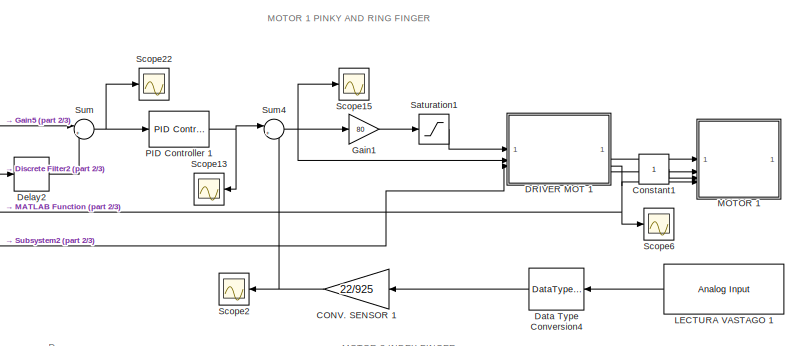
[diagram: root canvas - part 1/3, top right region]
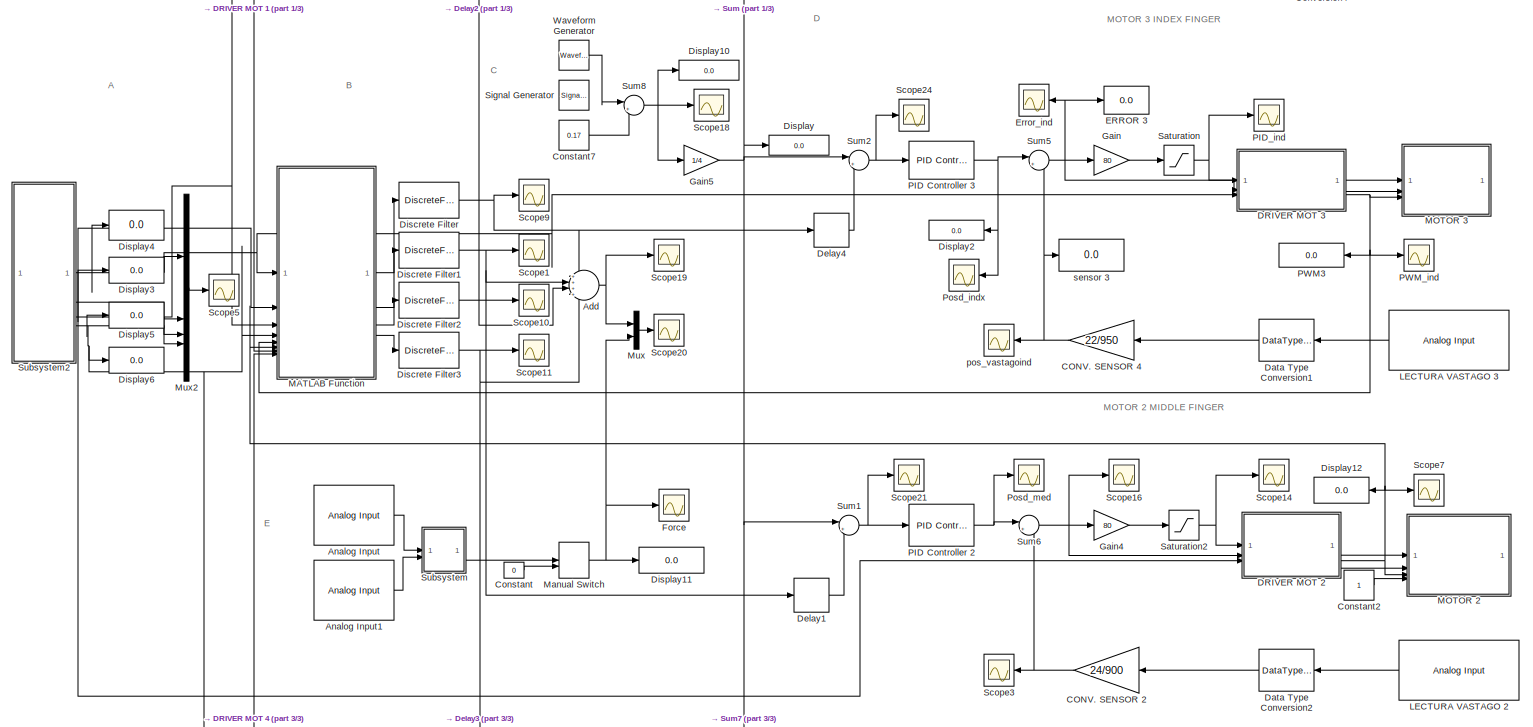
[diagram: root canvas - part 2/3, full width, middle band]
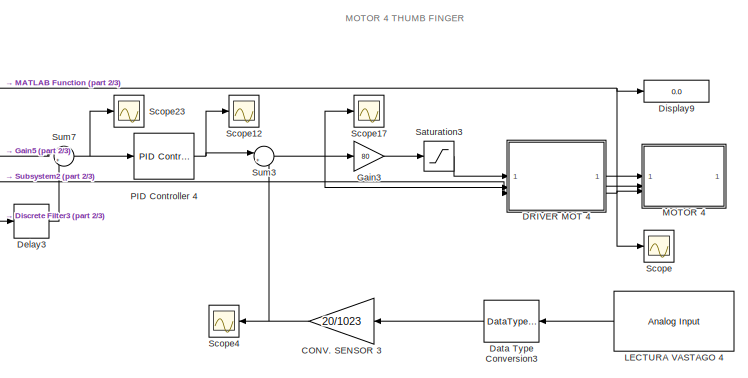
[diagram: root canvas - part 3/3, bottom right region]
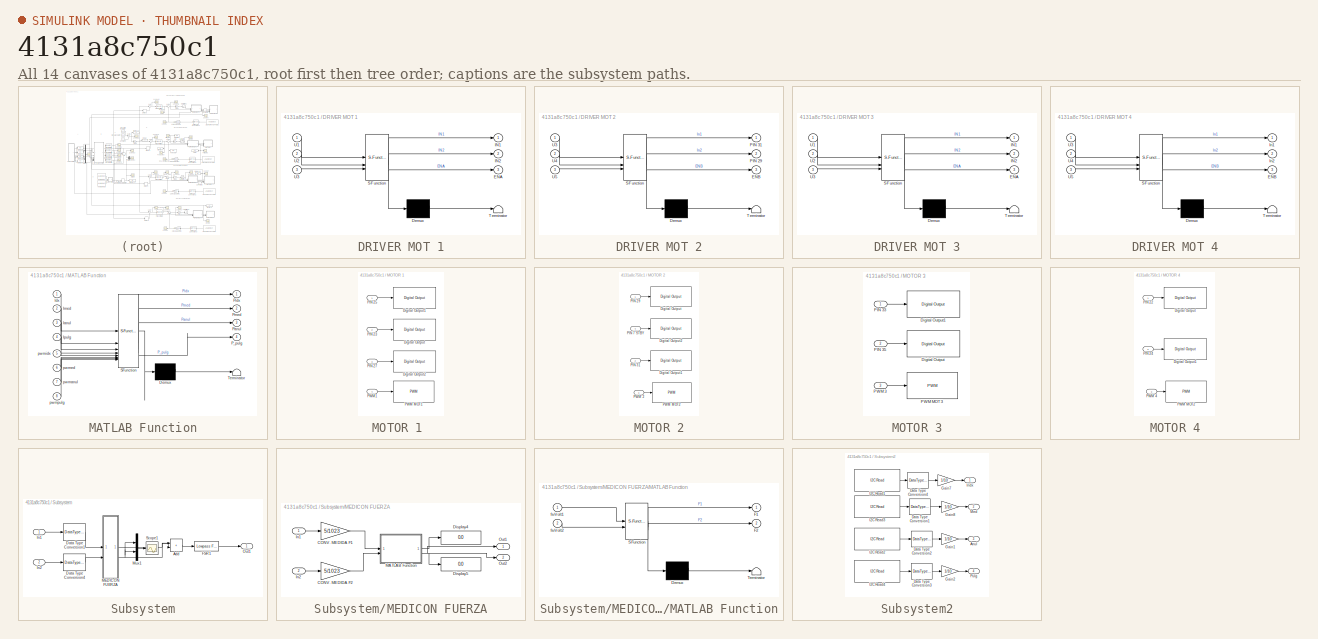
[diagram: thumbnail index - all 14 canvases of the model, root first then tree order]
MODEL slx_4131a8c750c1
KIND model
CONFIG AbsTol = auto
CONFIG EnableMultiTasking = on
CONFIG FixedStep = 0.1
CONFIG MaxStep = auto
CONFIG MinStep = auto
CONFIG RelTol = 1e-3
CONFIG SampleTimeConstraint = Unconstrained
CONFIG SolverName = FixedStepAuto
CONFIG StartTime = 0.0
CONFIG StopTime = inf
BLOCK [Sum] Add
  Inputs = ++++
BLOCK [Reference] Analog Input  REF=arduinolib/Analog Input
  SourceBlock = arduinolib/Analog Input
  SourceType = Arduino Analog Input
BLOCK [Reference] Analog Input1  REF=arduinolib/Analog Input
  SourceBlock = arduinolib/Analog Input
  SourceType = Arduino Analog Input
BLOCK [Gain] CONV. SENSOR 1
  Gain = 22/925
  OutDataTypeStr = double
BLOCK [Gain] CONV. SENSOR 2
  Gain = 24/900
  OutDataTypeStr = double
BLOCK [Gain] CONV. SENSOR 3
  Gain = 20/1023
  OutDataTypeStr = double
BLOCK [Gain] CONV. SENSOR 4
  Gain = 22/950
  OutDataTypeStr = double
BLOCK [Constant] Constant
  Value = 0
BLOCK [Constant] Constant1
BLOCK [Constant] Constant2
BLOCK [Constant] Constant7
  SampleTime = 0.01
  Value = 0.17
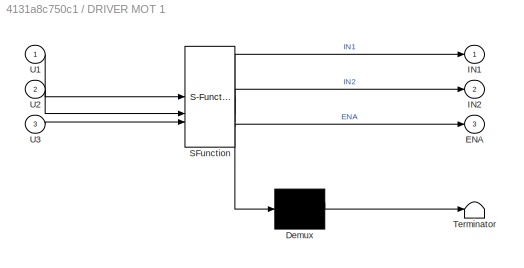
BLOCK [SubSystem] DRIVER MOT 1
  ErrorFcn = Stateflow.Translate.translate
  PermitHierarchicalResolution = ExplicitOnly
  SFBlockType = MATLAB Function
  TreatAsAtomicUnit = on
BLOCK [Demux] DRIVER MOT 1/ Demux 
  Outputs = 1
BLOCK [S-Function] DRIVER MOT 1/ SFunction 
  EnableBusSupport = on
  FunctionName = sf_sfun
  PortCounts = [3 4]
  SFcnIsStateOwnerBlock = off
  SFunctionDeploymentMode = off
  Tag = Stateflow S-Function 2
BLOCK [Terminator] DRIVER MOT 1/ Terminator 
BLOCK [Outport] DRIVER MOT 1/ENA
  Port = 3
  VectorParamsAs1DForOutWhenUnconnected = off
BLOCK [Outport] DRIVER MOT 1/IN1
  VectorParamsAs1DForOutWhenUnconnected = off
BLOCK [Outport] DRIVER MOT 1/IN2
  Port = 2
  VectorParamsAs1DForOutWhenUnconnected = off
BLOCK [Inport] DRIVER MOT 1/U1
BLOCK [Inport] DRIVER MOT 1/U2
  Port = 2
BLOCK [Inport] DRIVER MOT 1/U3
  Port = 3
BLOCK [SubSystem] DRIVER MOT 2
  ErrorFcn = Stateflow.Translate.translate
  PermitHierarchicalResolution = ExplicitOnly
  SFBlockType = MATLAB Function
  ShowPortLabels = SignalName
  TreatAsAtomicUnit = on
BLOCK [Demux] DRIVER MOT 2/ Demux 
  Outputs = 1
BLOCK [S-Function] DRIVER MOT 2/ SFunction 
  EnableBusSupport = on
  FunctionName = sf_sfun
  PortCounts = [3 4]
  SFcnIsStateOwnerBlock = off
  SFunctionDeploymentMode = off
  Tag = Stateflow S-Function 1
BLOCK [Terminator] DRIVER MOT 2/ Terminator 
BLOCK [Outport] DRIVER MOT 2/ENB
  Port = 3
  VectorParamsAs1DForOutWhenUnconnected = off
BLOCK [Outport] DRIVER MOT 2/PIN 29
  Port = 2
  VectorParamsAs1DForOutWhenUnconnected = off
BLOCK [Outport] DRIVER MOT 2/PIN 31
  VectorParamsAs1DForOutWhenUnconnected = off
BLOCK [Inport] DRIVER MOT 2/U3
BLOCK [Inport] DRIVER MOT 2/U4
  Port = 2
BLOCK [Inport] DRIVER MOT 2/U5
  Port = 3
BLOCK [SubSystem] DRIVER MOT 3
  ErrorFcn = Stateflow.Translate.translate
  PermitHierarchicalResolution = ExplicitOnly
  SFBlockType = MATLAB Function
  TreatAsAtomicUnit = on
BLOCK [Demux] DRIVER MOT 3/ Demux 
  Outputs = 1
BLOCK [S-Function] DRIVER MOT 3/ SFunction 
  EnableBusSupport = on
  FunctionName = sf_sfun
  PortCounts = [3 4]
  SFcnIsStateOwnerBlock = off
  SFunctionDeploymentMode = off
  Tag = Stateflow S-Function 4
BLOCK [Terminator] DRIVER MOT 3/ Terminator 
BLOCK [Outport] DRIVER MOT 3/ENA
  Port = 3
  VectorParamsAs1DForOutWhenUnconnected = off
BLOCK [Outport] DRIVER MOT 3/IN1
  VectorParamsAs1DForOutWhenUnconnected = off
BLOCK [Outport] DRIVER MOT 3/IN2
  Port = 2
  VectorParamsAs1DForOutWhenUnconnected = off
BLOCK [Inport] DRIVER MOT 3/U1
BLOCK [Inport] DRIVER MOT 3/U2
  Port = 2
BLOCK [Inport] DRIVER MOT 3/U3
  Port = 3
BLOCK [SubSystem] DRIVER MOT 4
  ErrorFcn = Stateflow.Translate.translate
  PermitHierarchicalResolution = ExplicitOnly
  SFBlockType = MATLAB Function
  TreatAsAtomicUnit = on
BLOCK [Demux] DRIVER MOT 4/ Demux 
  Outputs = 1
BLOCK [S-Function] DRIVER MOT 4/ SFunction 
  EnableBusSupport = on
  FunctionName = sf_sfun
  PortCounts = [3 4]
  SFcnIsStateOwnerBlock = off
  SFunctionDeploymentMode = off
  Tag = Stateflow S-Function 6
BLOCK [Terminator] DRIVER MOT 4/ Terminator 
BLOCK [Outport] DRIVER MOT 4/ENB
  Port = 3
  VectorParamsAs1DForOutWhenUnconnected = off
BLOCK [Outport] DRIVER MOT 4/In1
  VectorParamsAs1DForOutWhenUnconnected = off
BLOCK [Outport] DRIVER MOT 4/In2
  Port = 2
  VectorParamsAs1DForOutWhenUnconnected = off
BLOCK [Inport] DRIVER MOT 4/U3
BLOCK [Inport] DRIVER MOT 4/U4
  Port = 2
BLOCK [Inport] DRIVER MOT 4/U5
  Port = 3
BLOCK [DataTypeConversion] Data Type Conversion1
  OutDataTypeStr = double
  RndMeth = Floor
  SaturateOnIntegerOverflow = off
BLOCK [DataTypeConversion] Data Type Conversion2
  OutDataTypeStr = double
  RndMeth = Floor
  SaturateOnIntegerOverflow = off
BLOCK [DataTypeConversion] Data Type Conversion3
  OutDataTypeStr = double
  RndMeth = Floor
  SaturateOnIntegerOverflow = off
BLOCK [DataTypeConversion] Data Type Conversion4
  OutDataTypeStr = double
  RndMeth = Floor
  SaturateOnIntegerOverflow = off
BLOCK [Delay] Delay1
  DelayLength = 1
  InputPortMap = u0
  SampleTime = 0.01
BLOCK [Delay] Delay2
  DelayLength = 1
  InputPortMap = u0
  SampleTime = 0.01
BLOCK [Delay] Delay3
  DelayLength = 1
  InputPortMap = u0
  SampleTime = 0.01
BLOCK [Delay] Delay4
  DelayLength = 1
  InputPortMap = u0
  SampleTime = 0.01
BLOCK [DiscreteFilter] Discrete Filter
  Denominator = [1]
  InputPortMap = u0
  Numerator = (1/30)*ones(1,30)
BLOCK [DiscreteFilter] Discrete Filter1
  Denominator = [1]
  InputPortMap = u0
  Numerator = (1/30)*ones(1,30)
BLOCK [DiscreteFilter] Discrete Filter2
  Denominator = [1]
  InputPortMap = u0
  Numerator = (1/30)*ones(1,30)
BLOCK [DiscreteFilter] Discrete Filter3
  Denominator = [1]
  InputPortMap = u0
  Numerator = (1/30)*ones(1,30)
BLOCK [Display] Display
  Decimation = 1
BLOCK [Display] Display10
  Decimation = 1
BLOCK [Display] Display11
  Decimation = 1
BLOCK [Display] Display12
  Decimation = 1
BLOCK [Display] Display2
  Decimation = 1
BLOCK [Display] Display3
  Decimation = 1
BLOCK [Display] Display4
  Decimation = 1
BLOCK [Display] Display5
  Decimation = 1
BLOCK [Display] Display6
  Decimation = 1
BLOCK [Display] Display9
  Decimation = 1
BLOCK [Display] ERROR 3
  Decimation = 1
BLOCK [Scope] Error_ind
  Floating = off
  NumInputPorts = 1
  ScopeSpecificationString = Simulink.scopes.TimeScopeBlockCfg('CurrentConfiguration', extmgr.ConfigurationSet(extmgr.Configuration('Core','General UI',true),extmgr.Configuration('Core','Source UI',true),extmgr.Configuration('Sources','WiredSimulink',true,'DataLoggingVariableName','Error_ind','DataLogging',true,'DataLoggingSaveFormat','StructureWithTime'),extmgr.Configuration('Visuals','Time Domain',true,'SerializedDisplays',...<+1537ch>
BLOCK [Scope] Force
  Floating = off
  NumInputPorts = 1
  ScopeSpecificationString = Simulink.scopes.TimeScopeBlockCfg('CurrentConfiguration', extmgr.ConfigurationSet(extmgr.Configuration('Core','General UI',true),extmgr.Configuration('Core','Source UI',true),extmgr.Configuration('Sources','WiredSimulink',true,'DataLoggingVariableName','FSR_force','DataLogging',true,'DataLoggingSaveFormat','StructureWithTime'),extmgr.Configuration('Visuals','Time Domain',true,'SerializedDisplays',...<+1515ch>
BLOCK [Gain] Gain
  Gain = 80
BLOCK [Gain] Gain1
  Gain = 80
BLOCK [Gain] Gain3
  Gain = 80
BLOCK [Gain] Gain4
  Gain = 80
BLOCK [Gain] Gain5
  Gain = 1/4
BLOCK [Reference] LECTURA VASTAGO 1  REF=arduinolib/Analog Input
  SourceBlock = arduinolib/Analog Input
  SourceType = Arduino Analog Input
BLOCK [Reference] LECTURA VASTAGO 2  REF=arduinolib/Analog Input
  NameLocation = top
  SourceBlock = arduinolib/Analog Input
  SourceType = Arduino Analog Input
BLOCK [Reference] LECTURA VASTAGO 3  REF=arduinolib/Analog Input
  SourceBlock = arduinolib/Analog Input
  SourceType = Arduino Analog Input
BLOCK [Reference] LECTURA VASTAGO 4  REF=arduinolib/Analog Input
  NameLocation = top
  SourceBlock = arduinolib/Analog Input
  SourceType = Arduino Analog Input
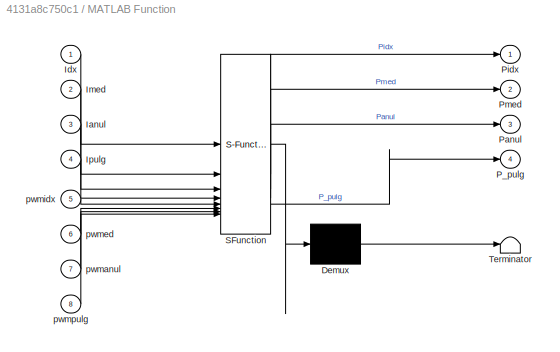
BLOCK [SubSystem] MATLAB Function
  ErrorFcn = Stateflow.Translate.translate
  PermitHierarchicalResolution = ExplicitOnly
  SFBlockType = MATLAB Function
  TreatAsAtomicUnit = on
BLOCK [Demux] MATLAB Function/ Demux 
  Outputs = 1
BLOCK [S-Function] MATLAB Function/ SFunction 
  EnableBusSupport = on
  FunctionName = sf_sfun
  PortCounts = [8 5]
  SFcnIsStateOwnerBlock = off
  SFunctionDeploymentMode = off
  Tag = Stateflow S-Function 3
BLOCK [Terminator] MATLAB Function/ Terminator 
BLOCK [Inport] MATLAB Function/Ianul
  Port = 3
BLOCK [Inport] MATLAB Function/Idx
BLOCK [Inport] MATLAB Function/Imed
  Port = 2
BLOCK [Inport] MATLAB Function/Ipulg
  Port = 4
BLOCK [Outport] MATLAB Function/P_pulg
  Port = 4
BLOCK [Outport] MATLAB Function/Panul
  Port = 3
BLOCK [Outport] MATLAB Function/Pidx
BLOCK [Outport] MATLAB Function/Pmed
  Port = 2
BLOCK [Inport] MATLAB Function/pwmanul
  Port = 7
BLOCK [Inport] MATLAB Function/pwmed
  Port = 6
BLOCK [Inport] MATLAB Function/pwmidx
  Port = 5
BLOCK [Inport] MATLAB Function/pwmpulg
  Port = 8
BLOCK [SubSystem] MOTOR 1 
BLOCK [Reference] MOTOR 1 /Digital Output  REF=arduinolib/Digital Output
  SourceBlock = arduinolib/Digital Output
  SourceType = Arduino Digital Output
BLOCK [Reference] MOTOR 1 /Digital Output1  REF=arduinolib/Digital Output
  SourceBlock = arduinolib/Digital Output
  SourceType = Arduino Digital Output
BLOCK [Reference] MOTOR 1 /Digital Output2  REF=arduinolib/Digital Output
  SourceBlock = arduinolib/Digital Output
  SourceType = Arduino Digital Output
BLOCK [Inport] MOTOR 1 /PIN 23
  Port = 2
BLOCK [Inport] MOTOR 1 /PIN 25
BLOCK [Inport] MOTOR 1 /PIN 27
  Port = 3
BLOCK [Reference] MOTOR 1 /PWM MOT1  REF=arduinolib/PWM
  SourceBlock = arduinolib/PWM
  SourceType = Arduino PWM
BLOCK [Inport] MOTOR 1 /PWM1
  Port = 4
BLOCK [SubSystem] MOTOR 2
BLOCK [Reference] MOTOR 2/Digital Output  REF=arduinolib/Digital Output
  SourceBlock = arduinolib/Digital Output
  SourceType = Arduino Digital Output
BLOCK [Reference] MOTOR 2/Digital Output1  REF=arduinolib/Digital Output
  SourceBlock = arduinolib/Digital Output
  SourceType = Arduino Digital Output
BLOCK [Reference] MOTOR 2/Digital Output2  REF=arduinolib/Digital Output
  SourceBlock = arduinolib/Digital Output
  SourceType = Arduino Digital Output
BLOCK [Inport] MOTOR 2/PIN 29
BLOCK [Inport] MOTOR 2/PIN 31
  Port = 2
BLOCK [Inport] MOTOR 2/PIN 7 STBY
  Port = 4
BLOCK [Inport] MOTOR 2/PWM 2
  Port = 3
BLOCK [Reference] MOTOR 2/PWM MOT2  REF=arduinolib/PWM
  SourceBlock = arduinolib/PWM
  SourceType = Arduino PWM
BLOCK [SubSystem] MOTOR 3
BLOCK [Reference] MOTOR 3/Digital Output  REF=arduinolib/Digital Output
  SourceBlock = arduinolib/Digital Output
  SourceType = Arduino Digital Output
BLOCK [Reference] MOTOR 3/Digital Output1  REF=arduinolib/Digital Output
  SourceBlock = arduinolib/Digital Output
  SourceType = Arduino Digital Output
BLOCK [Inport] MOTOR 3/PIN 33
BLOCK [Inport] MOTOR 3/PIN 35
  Port = 2
BLOCK [Inport] MOTOR 3/PWM 3
  Port = 3
BLOCK [Reference] MOTOR 3/PWM MOT 3  REF=arduinolib/PWM
  SourceBlock = arduinolib/PWM
  SourceType = Arduino PWM
BLOCK [SubSystem] MOTOR 4
BLOCK [Reference] MOTOR 4/Digital Output  REF=arduinolib/Digital Output
  SourceBlock = arduinolib/Digital Output
  SourceType = Arduino Digital Output
BLOCK [Reference] MOTOR 4/Digital Output1  REF=arduinolib/Digital Output
  SourceBlock = arduinolib/Digital Output
  SourceType = Arduino Digital Output
BLOCK [Inport] MOTOR 4/PIN 22
BLOCK [Inport] MOTOR 4/PIN 24
  Port = 2
BLOCK [Inport] MOTOR 4/PWM 4
  Port = 3
BLOCK [Reference] MOTOR 4/PWM MOT2  REF=arduinolib/PWM
  SourceBlock = arduinolib/PWM
  SourceType = Arduino PWM
BLOCK [ManualSwitch] Manual Switch
BLOCK [Mux] Mux
  DisplayOption = bar
  Inputs = 2
BLOCK [Mux] Mux2
  DisplayOption = bar
BLOCK [Reference] PID Controller 1  REF=slpidlib/PID Controller
  SourceBlock = slpidlib/PID Controller
  SourceType = PID 1dof
BLOCK [Reference] PID Controller 2  REF=slpidlib/PID Controller
  SourceBlock = slpidlib/PID Controller
  SourceType = PID 1dof
BLOCK [Reference] PID Controller 3  REF=slpidlib/PID Controller
  SourceBlock = slpidlib/PID Controller
  SourceType = PID 1dof
BLOCK [Reference] PID Controller 4  REF=slpidlib/PID Controller
  SourceBlock = slpidlib/PID Controller
  SourceType = PID 1dof
BLOCK [Scope] PID_ind
  Floating = off
  NumInputPorts = 1
  ScopeSpecificationString = Simulink.scopes.TimeScopeBlockCfg('CurrentConfiguration', extmgr.ConfigurationSet(extmgr.Configuration('Core','General UI',true),extmgr.Configuration('Core','Source UI',true),extmgr.Configuration('Sources','WiredSimulink',true,'DataLoggingSaveFormat','StructureWithTime','DataLoggingVariableName','PID_ind','DataLogging',true),extmgr.Configuration('Visuals','Time Domain',true,'SerializedDisplays',{s...<+1514ch>
BLOCK [Display] PWM3
  Decimation = 1
BLOCK [Scope] PWM_ind
  Floating = off
  NumInputPorts = 1
  ScopeSpecificationString = Simulink.scopes.TimeScopeBlockCfg('CurrentConfiguration', extmgr.ConfigurationSet(extmgr.Configuration('Core','General UI',true),extmgr.Configuration('Core','Source UI',true),extmgr.Configuration('Sources','WiredSimulink',true,'DataLoggingSaveFormat','StructureWithTime','DataLoggingVariableName','PWM_ind','DataLogging',true),extmgr.Configuration('Visuals','Time Domain',true,'SerializedDisplays',{s...<+1518ch>
BLOCK [Scope] Posd_indx
  Floating = off
  NumInputPorts = 1
  ScopeSpecificationString = Simulink.scopes.TimeScopeBlockCfg('CurrentConfiguration', extmgr.ConfigurationSet(extmgr.Configuration('Core','General UI',true),extmgr.Configuration('Core','Source UI',true),extmgr.Configuration('Sources','WiredSimulink',true,'DataLoggingVariableName','posd_ind','DataLogging',true,'DataLoggingSaveFormat','StructureWithTime'),extmgr.Configuration('Visuals','Time Domain',true,'SerializedDisplays',{...<+1492ch>
BLOCK [Scope] Posd_med
  Floating = off
  NumInputPorts = 1
  ScopeSpecificationString = Simulink.scopes.TimeScopeBlockCfg('CurrentConfiguration', extmgr.ConfigurationSet(extmgr.Configuration('Core','General UI',true),extmgr.Configuration('Core','Source UI',true),extmgr.Configuration('Sources','WiredSimulink',true,'DataLoggingVariableName','Posd_med','DataLogging',true,'DataLoggingSaveFormat','StructureWithTime'),extmgr.Configuration('Visuals','Time Domain',true,'SerializedDisplays',{...<+1482ch>
BLOCK [Saturate] Saturation
  LowerLimit = -255
  UpperLimit = 255
BLOCK [Saturate] Saturation1
  LowerLimit = -255
  UpperLimit = 255
BLOCK [Saturate] Saturation2
  LowerLimit = -255
  UpperLimit = 255
BLOCK [Saturate] Saturation3
  LowerLimit = -255
  UpperLimit = 255
BLOCK [Scope] Scope
  Floating = off
  NumInputPorts = 1
  ScopeSpecificationString = Simulink.scopes.TimeScopeBlockCfg('CurrentConfiguration', extmgr.ConfigurationSet(extmgr.Configuration('Core','General UI',true),extmgr.Configuration('Core','Source UI',true),extmgr.Configuration('Sources','WiredSimulink',true,'DataLoggingVariableName','pmw_pul','DataLogging',true,'DataLoggingSaveFormat','StructureWithTime'),extmgr.Configuration('Visuals','Time Domain',true,'SerializedDisplays',{s...<+1522ch>
BLOCK [Scope] Scope1
  Floating = off
  NumInputPorts = 1
  ScopeSpecificationString = Simulink.scopes.TimeScopeBlockCfg('CurrentConfiguration', extmgr.ConfigurationSet(extmgr.Configuration('Core','General UI',true),extmgr.Configuration('Core','Source UI',true),extmgr.Configuration('Sources','WiredSimulink',true,'DataLoggingVariableName','P_med','DataLogging',true,'DataLoggingSaveFormat','StructureWithTime'),extmgr.Configuration('Visuals','Time Domain',true,'SerializedDisplays',{str...<+1521ch>
BLOCK [Scope] Scope10
  Floating = off
  NumInputPorts = 1
  ScopeSpecificationString = Simulink.scopes.TimeScopeBlockCfg('CurrentConfiguration', extmgr.ConfigurationSet(extmgr.Configuration('Core','General UI',true),extmgr.Configuration('Core','Source UI',true),extmgr.Configuration('Sources','WiredSimulink',true,'DataLoggingVariableName','P_anul','DataLogging',true,'DataLoggingSaveFormat','StructureWithTime'),extmgr.Configuration('Visuals','Time Domain',true,'SerializedDisplays',{st...<+1524ch>
BLOCK [Scope] Scope11
  Floating = off
  NumInputPorts = 1
  ScopeSpecificationString = Simulink.scopes.TimeScopeBlockCfg('CurrentConfiguration', extmgr.ConfigurationSet(extmgr.Configuration('Core','General UI',true),extmgr.Configuration('Core','Source UI',true),extmgr.Configuration('Sources','WiredSimulink',true,'DataLoggingVariableName','P_pulg','DataLogging',true,'DataLoggingSaveFormat','StructureWithTime'),extmgr.Configuration('Visuals','Time Domain',true,'SerializedDisplays',{st...<+1521ch>
BLOCK [Scope] Scope12
  Floating = off
  NumInputPorts = 1
  ScopeSpecificationString = Simulink.scopes.TimeScopeBlockCfg('CurrentConfiguration', extmgr.ConfigurationSet(extmgr.Configuration('Core','General UI',true),extmgr.Configuration('Core','Source UI',true),extmgr.Configuration('Sources','WiredSimulink',true,'DataLoggingVariableName','Posd_pulg','DataLogging',true,'DataLoggingSaveFormat','StructureWithTime'),extmgr.Configuration('Visuals','Time Domain',true,'SerializedDisplays',...<+1485ch>
BLOCK [Scope] Scope13
  Floating = off
  NumInputPorts = 1
  ScopeSpecificationString = Simulink.scopes.TimeScopeBlockCfg('CurrentConfiguration', extmgr.ConfigurationSet(extmgr.Configuration('Core','General UI',true),extmgr.Configuration('Core','Source UI',true),extmgr.Configuration('Sources','WiredSimulink',true,'DataLoggingVariableName','Posd_anul','DataLogging',true,'DataLoggingSaveFormat','StructureWithTime'),extmgr.Configuration('Visuals','Time Domain',true,'SerializedDisplays',...<+1502ch>
BLOCK [Scope] Scope14
  Floating = off
  NumInputPorts = 1
  ScopeSpecificationString = Simulink.scopes.TimeScopeBlockCfg('CurrentConfiguration', extmgr.ConfigurationSet(extmgr.Configuration('Core','General UI',true),extmgr.Configuration('Core','Source UI',true),extmgr.Configuration('Sources','WiredSimulink',true,'DataLoggingVariableName','ScopeData1'),extmgr.Configuration('Visuals','Time Domain',true,'SerializedDisplays',{struct('MinYLimReal','-129.86668','MaxYLimReal','86.13331','Y...<+1438ch>
BLOCK [Scope] Scope15
  Floating = off
  NumInputPorts = 1
  ScopeSpecificationString = Simulink.scopes.TimeScopeBlockCfg('CurrentConfiguration', extmgr.ConfigurationSet(extmgr.Configuration('Core','General UI',true),extmgr.Configuration('Core','Source UI',true),extmgr.Configuration('Sources','WiredSimulink',true,'DataLoggingVariableName','ScopeData2'),extmgr.Configuration('Visuals','Time Domain',true,'SerializedDisplays',{struct('MinYLimReal','-2.04351','MaxYLimReal','0.63487','YLab...<+1388ch>
BLOCK [Scope] Scope16
  Floating = off
  NumInputPorts = 1
  ScopeSpecificationString = Simulink.scopes.TimeScopeBlockCfg('CurrentConfiguration', extmgr.ConfigurationSet(extmgr.Configuration('Core','General UI',true),extmgr.Configuration('Core','Source UI',true),extmgr.Configuration('Sources','WiredSimulink',true,'DataLoggingVariableName','ScopeData3'),extmgr.Configuration('Visuals','Time Domain',true,'SerializedDisplays',{struct('MinYLimReal','-1.73667','MaxYLimReal','1.03','YLabelR...<+1415ch>
BLOCK [Scope] Scope17
  Floating = off
  NumInputPorts = 1
  ScopeSpecificationString = Simulink.scopes.TimeScopeBlockCfg('CurrentConfiguration', extmgr.ConfigurationSet(extmgr.Configuration('Core','General UI',true),extmgr.Configuration('Core','Source UI',true),extmgr.Configuration('Sources','WiredSimulink',true,'DataLoggingVariableName','ScopeData4'),extmgr.Configuration('Visuals','Time Domain',true,'SerializedDisplays',{struct('MinYLimReal','-1.5501','MaxYLimReal','1.16984','YLabe...<+1436ch>
BLOCK [Scope] Scope18
  Floating = off
  NumInputPorts = 1
  ScopeSpecificationString = Simulink.scopes.TimeScopeBlockCfg('CurrentConfiguration', extmgr.ConfigurationSet(extmgr.Configuration('Core','General UI',true),extmgr.Configuration('Core','Source UI',true),extmgr.Configuration('Sources','WiredSimulink',true,'DataLoggingVariableName','Ref_track','DataLogging',true,'DataLoggingSaveFormat','StructureWithTime'),extmgr.Configuration('Visuals','Time Domain',true,'SerializedDisplays',...<+1502ch>
BLOCK [Scope] Scope19
  Floating = off
  NumInputPorts = 1
  ScopeSpecificationString = Simulink.scopes.TimeScopeBlockCfg('CurrentConfiguration', extmgr.ConfigurationSet(extmgr.Configuration('Core','General UI',true),extmgr.Configuration('Core','Source UI',true),extmgr.Configuration('Sources','WiredSimulink',true,'DataLoggingVariableName','P_tot','DataLogging',true,'DataLoggingSaveFormat','StructureWithTime'),extmgr.Configuration('Visuals','Time Domain',true,'SerializedDisplays',{str...<+1504ch>
BLOCK [Scope] Scope2
  Floating = off
  NumInputPorts = 1
  ScopeSpecificationString = Simulink.scopes.TimeScopeBlockCfg('CurrentConfiguration', extmgr.ConfigurationSet(extmgr.Configuration('Core','General UI',true),extmgr.Configuration('Core','Source UI',true),extmgr.Configuration('Sources','WiredSimulink',true,'DataLoggingVariableName','pos_vastagoanul','DataLogging',true,'DataLoggingSaveFormat','StructureWithTime'),extmgr.Configuration('Visuals','Time Domain',true,'SerializedDisp...<+1557ch>
BLOCK [Scope] Scope20
  Floating = off
  NumInputPorts = 1
  ScopeSpecificationString = Simulink.scopes.TimeScopeBlockCfg('CurrentConfiguration', extmgr.ConfigurationSet(extmgr.Configuration('Core','General UI',true),extmgr.Configuration('Core','Source UI',true),extmgr.Configuration('Sources','WiredSimulink',true,'DataLoggingVariableName','Force_pot','DataLogging',true,'DataLoggingSaveFormat','StructureWithTime'),extmgr.Configuration('Visuals','Time Domain',true,'SerializedDisplays',...<+1538ch>
BLOCK [Scope] Scope21
  Floating = off
  NumInputPorts = 1
  ScopeSpecificationString = Simulink.scopes.TimeScopeBlockCfg('CurrentConfiguration', extmgr.ConfigurationSet(extmgr.Configuration('Core','General UI',true),extmgr.Configuration('Core','Source UI',true),extmgr.Configuration('Sources','WiredSimulink',true,'DataLoggingVariableName','ScopeData1'),extmgr.Configuration('Visuals','Time Domain',true,'SerializedDisplays',{struct('MinYLimReal','-0.09745','MaxYLimReal','0.06916','YLab...<+1418ch>
BLOCK [Scope] Scope22
  Floating = off
  NumInputPorts = 1
  ScopeSpecificationString = Simulink.scopes.TimeScopeBlockCfg('CurrentConfiguration', extmgr.ConfigurationSet(extmgr.Configuration('Core','General UI',true),extmgr.Configuration('Core','Source UI',true),extmgr.Configuration('Sources','WiredSimulink',true,'DataLoggingVariableName','ScopeData2'),extmgr.Configuration('Visuals','Time Domain',true,'SerializedDisplays',{struct('MinYLimReal','-0.12897','MaxYLimReal','0.056','YLabel...<+1432ch>
BLOCK [Scope] Scope23
  Floating = off
  NumInputPorts = 1
  ScopeSpecificationString = Simulink.scopes.TimeScopeBlockCfg('CurrentConfiguration', extmgr.ConfigurationSet(extmgr.Configuration('Core','General UI',true),extmgr.Configuration('Core','Source UI',true),extmgr.Configuration('Sources','WiredSimulink',true,'DataLoggingVariableName','ScopeData3'),extmgr.Configuration('Visuals','Time Domain',true,'SerializedDisplays',{struct('MinYLimReal','-0.1086','MaxYLimReal','0.05373','YLabe...<+1433ch>
BLOCK [Scope] Scope24
  Floating = off
  NumInputPorts = 1
  ScopeSpecificationString = Simulink.scopes.TimeScopeBlockCfg('CurrentConfiguration', extmgr.ConfigurationSet(extmgr.Configuration('Core','General UI',true),extmgr.Configuration('Core','Source UI',true),extmgr.Configuration('Sources','WiredSimulink',true,'DataLoggingVariableName','Power_Error','DataLogging',true,'DataLoggingSaveFormat','StructureWithTime'),extmgr.Configuration('Visuals','Time Domain',true,'SerializedDisplays...<+1535ch>
BLOCK [Scope] Scope3
  Floating = off
  NumInputPorts = 1
  ScopeSpecificationString = Simulink.scopes.TimeScopeBlockCfg('CurrentConfiguration', extmgr.ConfigurationSet(extmgr.Configuration('Core','General UI',true),extmgr.Configuration('Core','Source UI',true),extmgr.Configuration('Sources','WiredSimulink',true,'DataLoggingVariableName','pos_vastagomed','DataLogging',true,'DataLoggingSaveFormat','StructureWithTime'),extmgr.Configuration('Visuals','Time Domain',true,'SerializedDispl...<+1525ch>
BLOCK [Scope] Scope4
  Floating = off
  NumInputPorts = 1
  ScopeSpecificationString = Simulink.scopes.TimeScopeBlockCfg('CurrentConfiguration', extmgr.ConfigurationSet(extmgr.Configuration('Core','General UI',true),extmgr.Configuration('Core','Source UI',true),extmgr.Configuration('Sources','WiredSimulink',true,'DataLoggingVariableName','pos_vastagopul','DataLogging',true,'DataLoggingSaveFormat','StructureWithTime'),extmgr.Configuration('Visuals','Time Domain',true,'SerializedDispl...<+1517ch>
BLOCK [Scope] Scope5
  Floating = off
  NumInputPorts = 1
  ScopeSpecificationString = Simulink.scopes.TimeScopeBlockCfg('CurrentConfiguration', extmgr.ConfigurationSet(extmgr.Configuration('Core','General UI',true),extmgr.Configuration('Core','Source UI',true),extmgr.Configuration('Sources','WiredSimulink',true,'DataLoggingVariableName','current','DataLogging',true,'DataLoggingSaveFormat','StructureWithTime'),extmgr.Configuration('Visuals','Time Domain',true,'SerializedDisplays',{s...<+1743ch>
BLOCK [Scope] Scope6
  Floating = off
  NumInputPorts = 1
  ScopeSpecificationString = Simulink.scopes.TimeScopeBlockCfg('CurrentConfiguration', extmgr.ConfigurationSet(extmgr.Configuration('Core','General UI',true),extmgr.Configuration('Core','Source UI',true),extmgr.Configuration('Sources','WiredSimulink',true,'DataLoggingVariableName','pwm_anul','DataLogging',true,'DataLoggingSaveFormat','StructureWithTime'),extmgr.Configuration('Visuals','Time Domain',true,'SerializedDisplays',{...<+1471ch>
BLOCK [Scope] Scope7
  Floating = off
  NumInputPorts = 1
  ScopeSpecificationString = Simulink.scopes.TimeScopeBlockCfg('CurrentConfiguration', extmgr.ConfigurationSet(extmgr.Configuration('Core','General UI',true),extmgr.Configuration('Core','Source UI',true),extmgr.Configuration('Sources','WiredSimulink',true,'DataLoggingVariableName','pwm_med','DataLogging',true,'DataLoggingSaveFormat','StructureWithTime'),extmgr.Configuration('Visuals','Time Domain',true,'SerializedDisplays',{s...<+1499ch>
BLOCK [Scope] Scope9
  Floating = off
  NumInputPorts = 1
  ScopeSpecificationString = Simulink.scopes.TimeScopeBlockCfg('CurrentConfiguration', extmgr.ConfigurationSet(extmgr.Configuration('Core','General UI',true),extmgr.Configuration('Core','Source UI',true),extmgr.Configuration('Sources','WiredSimulink',true,'DataLoggingVariableName','P_idx','DataLogging',true,'DataLoggingSaveFormat','StructureWithTime'),extmgr.Configuration('Visuals','Time Domain',true,'SerializedDisplays',{str...<+1517ch>
BLOCK [SignalGenerator] Signal Generator
  Amplitude = 0.06
  Frequency = 2*pi/8
  Units = rad/sec
  WaveForm = square
BLOCK [SubSystem] Subsystem
BLOCK [Sum] Subsystem/Add
  IconShape = rectangular
BLOCK [DataTypeConversion] Subsystem/Data Type Conversion1
  OutDataTypeStr = double
  RndMeth = Floor
  SaturateOnIntegerOverflow = off
BLOCK [DataTypeConversion] Subsystem/Data Type Conversion4
  OutDataTypeStr = double
  RndMeth = Floor
  SaturateOnIntegerOverflow = off
BLOCK [Reference] Subsystem/FSR1   REF=dspfdesign/Lowpass Filter
  SourceBlock = dspfdesign/Lowpass Filter
  SourceType = dsp.simulink.LowpassFilter
BLOCK [Inport] Subsystem/In1
BLOCK [Inport] Subsystem/In2
  Port = 2
BLOCK [SubSystem] Subsystem/MEDICON FUERZA
BLOCK [Gain] Subsystem/MEDICON FUERZA/CONV. MEDIDA F1
  Gain = 5/1023
  OutDataTypeStr = double
  RndMeth = Round
BLOCK [Gain] Subsystem/MEDICON FUERZA/CONV. MEDIDA F2
  Gain = 5/1023
  OutDataTypeStr = double
  RndMeth = Round
BLOCK [Display] Subsystem/MEDICON FUERZA/Display4
  Decimation = 2
BLOCK [Display] Subsystem/MEDICON FUERZA/Display5
  Decimation = 2
BLOCK [Inport] Subsystem/MEDICON FUERZA/In1
BLOCK [Inport] Subsystem/MEDICON FUERZA/In2
  Port = 2
BLOCK [SubSystem] Subsystem/MEDICON FUERZA/MATLAB Function
  ErrorFcn = Stateflow.Translate.translate
  PermitHierarchicalResolution = ExplicitOnly
  SFBlockType = MATLAB Function
  TreatAsAtomicUnit = on
BLOCK [Demux] Subsystem/MEDICON FUERZA/MATLAB Function/ Demux 
  Outputs = 1
BLOCK [S-Function] Subsystem/MEDICON FUERZA/MATLAB Function/ SFunction 
  EnableBusSupport = on
  FunctionName = sf_sfun
  PortCounts = [2 3]
  SFcnIsStateOwnerBlock = off
  SFunctionDeploymentMode = off
  Tag = Stateflow S-Function 5
BLOCK [Terminator] Subsystem/MEDICON FUERZA/MATLAB Function/ Terminator 
BLOCK [Outport] Subsystem/MEDICON FUERZA/MATLAB Function/F1
  VectorParamsAs1DForOutWhenUnconnected = off
BLOCK [Outport] Subsystem/MEDICON FUERZA/MATLAB Function/F2
  Port = 2
  VectorParamsAs1DForOutWhenUnconnected = off
BLOCK [Inport] Subsystem/MEDICON FUERZA/MATLAB Function/fsrVolt1
BLOCK [Inport] Subsystem/MEDICON FUERZA/MATLAB Function/fsrVolt2
  Port = 2
BLOCK [Outport] Subsystem/MEDICON FUERZA/Out1
  VectorParamsAs1DForOutWhenUnconnected = off
BLOCK [Outport] Subsystem/MEDICON FUERZA/Out2
  Port = 2
  VectorParamsAs1DForOutWhenUnconnected = off
BLOCK [Mux] Subsystem/Mux1
  DisplayOption = bar
  Inputs = 2
BLOCK [Outport] Subsystem/Out1
BLOCK [Scope] Subsystem/Scope1
  Floating = off
  NumInputPorts = 1
  ScopeSpecificationString = Simulink.scopes.TimeScopeBlockCfg('CurrentConfiguration', extmgr.ConfigurationSet(extmgr.Configuration('Core','General UI',true),extmgr.Configuration('Core','Source UI',true),extmgr.Configuration('Sources','WiredSimulink',true,'DataLoggingVariableName','FSR','DataLogging',true,'DataLoggingSaveFormat','StructureWithTime'),extmgr.Configuration('Visuals','Time Domain',true,'SerializedDisplays',{struc...<+1529ch>
BLOCK [SubSystem] Subsystem2
BLOCK [Outport] Subsystem2/Anul
  Port = 3
BLOCK [DataTypeConversion] Subsystem2/Data Type Conversion1
  OutDataTypeStr = double
  RndMeth = Floor
  SaturateOnIntegerOverflow = off
BLOCK [DataTypeConversion] Subsystem2/Data Type Conversion2
  OutDataTypeStr = double
  RndMeth = Floor
  SaturateOnIntegerOverflow = off
BLOCK [DataTypeConversion] Subsystem2/Data Type Conversion3
  OutDataTypeStr = double
  RndMeth = Floor
  SaturateOnIntegerOverflow = off
BLOCK [DataTypeConversion] Subsystem2/Data Type Conversion4
  OutDataTypeStr = double
  RndMeth = Floor
  SaturateOnIntegerOverflow = off
BLOCK [Gain] Subsystem2/Gain1
  Gain = 1/10
  OutDataTypeStr = double
BLOCK [Gain] Subsystem2/Gain2
  Gain = 1/10
  OutDataTypeStr = double
BLOCK [Gain] Subsystem2/Gain7
  Gain = 1/10
  OutDataTypeStr = double
BLOCK [Gain] Subsystem2/Gain8
  Gain = 1/10
  OutDataTypeStr = double
BLOCK [Reference] Subsystem2/I2C Read1  REF=arduinolib/I2C Read
  SourceBlock = arduinolib/I2C Read
  SourceType = I2C Read
BLOCK [Reference] Subsystem2/I2C Read2  REF=arduinolib/I2C Read
  SourceBlock = arduinolib/I2C Read
  SourceType = I2C Read
BLOCK [Reference] Subsystem2/I2C Read3  REF=arduinolib/I2C Read
  SourceBlock = arduinolib/I2C Read
  SourceType = I2C Read
BLOCK [Reference] Subsystem2/I2C Read4  REF=arduinolib/I2C Read
  SourceBlock = arduinolib/I2C Read
  SourceType = I2C Read
BLOCK [Outport] Subsystem2/Indx
BLOCK [Outport] Subsystem2/Med
  Port = 2
BLOCK [Outport] Subsystem2/Pulg
  Port = 4
BLOCK [Sum] Sum
  Inputs = |+-
BLOCK [Sum] Sum1
  Inputs = |+-
BLOCK [Sum] Sum2
  Inputs = |+-
BLOCK [Sum] Sum3
  Inputs = |+-
BLOCK [Sum] Sum4
  Inputs = |+-
BLOCK [Sum] Sum5
  Inputs = |+-
BLOCK [Sum] Sum6
  Inputs = |+-
BLOCK [Sum] Sum7
  Inputs = |+-
BLOCK [Sum] Sum8
  Inputs = |++
BLOCK [Reference] Waveform Generator  REF=simulink/Sources/Waveform
Generator
  SourceBlock = simulink/Sources/Waveform\nGenerator
  SourceType = WaveformGenerator
BLOCK [Scope] pos_vastagoind
  Floating = off
  NumInputPorts = 1
  ScopeSpecificationString = Simulink.scopes.TimeScopeBlockCfg('CurrentConfiguration', extmgr.ConfigurationSet(extmgr.Configuration('Core','General UI',true),extmgr.Configuration('Core','Source UI',true),extmgr.Configuration('Sources','WiredSimulink',true,'DataLoggingVariableName','pos_vastagoind','DataLogging',true,'DataLoggingSaveFormat','StructureWithTime'),extmgr.Configuration('Visuals','Time Domain',true,'SerializedDispl...<+1530ch>
BLOCK [Display] sensor 3
  Decimation = 1
ANNOTATION (root): MOTOR 1 PINKY AND RING FINGER
ANNOTATION (root): MOTOR 2 MIDDLE FINGER
ANNOTATION (root): MOTOR 3 INDEX FINGER
ANNOTATION (root): MOTOR 4 THUMB FINGER
ANNOTATION (root): A
ANNOTATION (root): B
ANNOTATION (root): C
ANNOTATION (root): E
ANNOTATION (root): D
NET Add:1 -> Mux:1, Scope19:1
LINE Analog Input1:1 -> Subsystem:2
LINE Analog Input:1 -> Subsystem:1
NET CONV. SENSOR 1:1 -> Scope2:1, Sum4:2
NET CONV. SENSOR 2:1 -> Scope3:1, Sum6:2
NET CONV. SENSOR 3:1 -> Scope4:1, Sum3:2
NET CONV. SENSOR 4:1 -> Sum5:2, pos_vastagoind:1, sensor 3:1
LINE Constant1:1 -> MOTOR 1 :3
LINE Constant2:1 -> MOTOR 2:4
LINE Constant7:1 -> Sum8:2
LINE Constant:1 -> Manual Switch:2
LINE DRIVER MOT 1:1 -> MOTOR 1 :1
LINE DRIVER MOT 1:2 -> MOTOR 1 :2
NET DRIVER MOT 1:3 -> MATLAB Function:7, MOTOR 1 :4, Scope6:1
LINE DRIVER MOT 2:1 -> MOTOR 2:1
LINE DRIVER MOT 2:2 -> MOTOR 2:2
NET DRIVER MOT 2:3 -> Display12:1, MATLAB Function:6, MOTOR 2:3, Scope7:1
LINE DRIVER MOT 3:1 -> MOTOR 3:1
LINE DRIVER MOT 3:2 -> MOTOR 3:2
NET DRIVER MOT 3:3 -> MATLAB Function:5, MOTOR 3:3, PWM3:1, PWM_ind:1
LINE DRIVER MOT 4:1 -> MOTOR 4:1
LINE DRIVER MOT 4:2 -> MOTOR 4:2
NET DRIVER MOT 4:3 -> Display9:1, MATLAB Function:8, MOTOR 4:3, Scope:1
LINE Data Type Conversion1:1 -> CONV. SENSOR 4:1
LINE Data Type Conversion2:1 -> CONV. SENSOR 2:1
LINE Data Type Conversion3:1 -> CONV. SENSOR 3:1
LINE Data Type Conversion4:1 -> CONV. SENSOR 1:1
LINE Delay1:1 -> Sum1:2
LINE Delay2:1 -> Sum:2
LINE Delay3:1 -> Sum7:2
LINE Delay4:1 -> Sum2:2
NET Discrete Filter1:1 -> Add:2, Delay1:1, Scope1:1
NET Discrete Filter2:1 -> Add:3, Delay2:1, Scope10:1
NET Discrete Filter3:1 -> Add:4, Delay3:1, Scope11:1
NET Discrete Filter:1 -> Add:1, Delay4:1, Scope9:1
LINE Gain1:1 -> Saturation1:1
LINE Gain3:1 -> Saturation3:1
LINE Gain4:1 -> Saturation2:1
NET Gain5:1 -> Display:1, Sum1:1, Sum2:1, Sum7:1, Sum:1
LINE Gain:1 -> Saturation:1
LINE LECTURA VASTAGO 1:1 -> Data Type Conversion4:1
LINE LECTURA VASTAGO 2:1 -> Data Type Conversion2:1
LINE LECTURA VASTAGO 3:1 -> Data Type Conversion1:1
LINE LECTURA VASTAGO 4:1 -> Data Type Conversion3:1
LINE MATLAB Function:1 -> Discrete Filter:1
LINE MATLAB Function:2 -> Discrete Filter1:1
LINE MATLAB Function:3 -> Discrete Filter2:1
LINE MATLAB Function:4 -> Discrete Filter3:1
LINE MOTOR 1 /PIN 23:1 -> MOTOR 1 /Digital Output:1
LINE MOTOR 1 /PIN 25:1 -> MOTOR 1 /Digital Output1:1
LINE MOTOR 1 /PIN 27:1 -> MOTOR 1 /Digital Output2:1
LINE MOTOR 1 /PWM1:1 -> MOTOR 1 /PWM MOT1:1
LINE MOTOR 2/PIN 29:1 -> MOTOR 2/Digital Output:1
LINE MOTOR 2/PIN 31:1 -> MOTOR 2/Digital Output1:1
LINE MOTOR 2/PIN 7 STBY:1 -> MOTOR 2/Digital Output2:1
LINE MOTOR 2/PWM 2:1 -> MOTOR 2/PWM MOT2:1
LINE MOTOR 3/PIN 33:1 -> MOTOR 3/Digital Output1:1
LINE MOTOR 3/PIN 35:1 -> MOTOR 3/Digital Output:1
LINE MOTOR 3/PWM 3:1 -> MOTOR 3/PWM MOT 3:1
LINE MOTOR 4/PIN 22:1 -> MOTOR 4/Digital Output:1
LINE MOTOR 4/PIN 24:1 -> MOTOR 4/Digital Output1:1
LINE MOTOR 4/PWM 4:1 -> MOTOR 4/PWM MOT2:1
NET Manual Switch:1 -> Display11:1, Force:1, Mux:2
LINE Mux2:1 -> Scope5:1
LINE Mux:1 -> Scope20:1
NET PID Controller 1:1 -> Scope13:1, Sum4:1
NET PID Controller 2:1 -> Posd_med:1, Sum6:1
NET PID Controller 3:1 -> Display2:1, Posd_indx:1, Sum5:1
NET PID Controller 4:1 -> Scope12:1, Sum3:1
LINE Saturation1:1 -> DRIVER MOT 1:1
NET Saturation2:1 -> DRIVER MOT 2:1, Scope14:1
LINE Saturation3:1 -> DRIVER MOT 4:1
NET Saturation:1 -> DRIVER MOT 3:1, PID_ind:1
LINE Subsystem/Add:1 -> Subsystem/FSR1 :1
LINE Subsystem/Data Type Conversion1:1 -> Subsystem/MEDICON FUERZA:1
LINE Subsystem/Data Type Conversion4:1 -> Subsystem/MEDICON FUERZA:2
LINE Subsystem/FSR1 :1 -> Subsystem/Out1:1
LINE Subsystem/In1:1 -> Subsystem/Data Type Conversion1:1
LINE Subsystem/In2:1 -> Subsystem/Data Type Conversion4:1
LINE Subsystem/MEDICON FUERZA/CONV. MEDIDA F1:1 -> Subsystem/MEDICON FUERZA/MATLAB Function:1
LINE Subsystem/MEDICON FUERZA/CONV. MEDIDA F2:1 -> Subsystem/MEDICON FUERZA/MATLAB Function:2
LINE Subsystem/MEDICON FUERZA/In1:1 -> Subsystem/MEDICON FUERZA/CONV. MEDIDA F1:1
LINE Subsystem/MEDICON FUERZA/In2:1 -> Subsystem/MEDICON FUERZA/CONV. MEDIDA F2:1
NET Subsystem/MEDICON FUERZA/MATLAB Function:1 -> Subsystem/MEDICON FUERZA/Display4:1, Subsystem/MEDICON FUERZA/Out1:1
NET Subsystem/MEDICON FUERZA/MATLAB Function:2 -> Subsystem/MEDICON FUERZA/Display5:1, Subsystem/MEDICON FUERZA/Out2:1
NET Subsystem/MEDICON FUERZA:1 -> Subsystem/Add:1, Subsystem/Mux1:1
NET Subsystem/MEDICON FUERZA:2 -> Subsystem/Add:2, Subsystem/Mux1:2
LINE Subsystem/Mux1:1 -> Subsystem/Scope1:1
LINE Subsystem2/Data Type Conversion1:1 -> Subsystem2/Gain8:1
LINE Subsystem2/Data Type Conversion2:1 -> Subsystem2/Gain1:1
LINE Subsystem2/Data Type Conversion3:1 -> Subsystem2/Gain2:1
LINE Subsystem2/Data Type Conversion4:1 -> Subsystem2/Gain7:1
LINE Subsystem2/Gain1:1 -> Subsystem2/Anul:1
LINE Subsystem2/Gain2:1 -> Subsystem2/Pulg:1
LINE Subsystem2/Gain7:1 -> Subsystem2/Indx:1
LINE Subsystem2/Gain8:1 -> Subsystem2/Med:1
LINE Subsystem2/I2C Read1:1 -> Subsystem2/Data Type Conversion4:1
LINE Subsystem2/I2C Read2:1 -> Subsystem2/Data Type Conversion2:1
LINE Subsystem2/I2C Read3:1 -> Subsystem2/Data Type Conversion1:1
LINE Subsystem2/I2C Read4:1 -> Subsystem2/Data Type Conversion3:1
NET Subsystem2:1 -> DRIVER MOT 3:3, Display4:1, MATLAB Function:1, Mux2:1
NET Subsystem2:2 -> DRIVER MOT 2:3, Display3:1, MATLAB Function:2, Mux2:2
NET Subsystem2:3 -> DRIVER MOT 1:3, Display5:1, MATLAB Function:3, Mux2:3
NET Subsystem2:4 -> DRIVER MOT 4:3, Display6:1, MATLAB Function:4, Mux2:4
LINE Subsystem:1 -> Manual Switch:1
NET Sum1:1 -> PID Controller 2:1, Scope21:1
NET Sum2:1 -> PID Controller 3:1, Scope24:1
NET Sum3:1 -> DRIVER MOT 4:2, Gain3:1, Scope17:1
NET Sum4:1 -> DRIVER MOT 1:2, Gain1:1, Scope15:1
NET Sum5:1 -> DRIVER MOT 3:2, ERROR 3:1, Error_ind:1, Gain:1
NET Sum6:1 -> DRIVER MOT 2:2, Gain4:1, Scope16:1
NET Sum7:1 -> PID Controller 4:1, Scope23:1
NET Sum8:1 -> Display10:1, Gain5:1, Scope18:1
NET Sum:1 -> PID Controller 1:1, Scope22:1
LINE Waveform Generator:1 -> Sum8:1
note: NET lines group one-source signal fan-out (src -> all destinations, sorted); 1:1 wires keep LINE
CHART DRIVER MOT 2 states=1 transitions=1
  STATE_LABEL 'eML_blk_kernel()'
  STATE_LABEL 'SCRIPT:\nfunction [In1, In2, ENB] = fcn(U3,U4,U5)\n\nif U3 > 0\n\n    In1 = 0; % 1\n    In2 = 1; % 0\n    ENB = abs(U3);\n    % STBY1 =1;\n\n\nelseif U3 < 0\n\n    In1 = 1;  % 0\n    In2 = 0;  % 1\n    ENB = abs(U3);\n    %   STBY1 =1;\n\n\nelse\n    In1 = 0;\n    In2 = 0;\n    ENB = 0;\nend\n\nif U4 == 0\n\n    In1 = 0;\n    In2 = 0;\n    ENB = 0;\nend\n\nif abs(U5)> 180\n    In1 = 0;\n    In2 = 0;\n    ENB = 0;\n\nend\nend\n\n\n'
CHART DRIVER MOT 1 states=1 transitions=1
  STATE_LABEL 'eML_blk_kernel()'
  STATE_LABEL 'SCRIPT:\nfunction [IN1, IN2, ENA] = fcn(U1,U2,U3)\n\n     \nif U1 > 0\n    \n    IN1 = 1; % 0\n    IN2 = 0; % 1 \n   \n    ENA = abs(U1);\n    \n    \nelseif U1 < 0\n       \n       IN1 = 0; % 1\n       IN2 = 1; % 0\n      \n      ENA = abs(U1);\n    \n\nelse\n       IN1 = 0;\n       IN2 = 0; \n       ENA = 0;\n       \nend\nif U2 == 0\n     \n       IN1 = 0;\n       IN2 = 0; \n       ENA = 0;\n      \nend\n\n if abs(U3)> 185\n    ...<+68ch>'
CHART MATLAB Function states=1 transitions=1
  STATE_LABEL 'eML_blk_kernel()'
  STATE_LABEL 'SCRIPT:\nfunction [Pidx,Pmed,Panul,P_pulg] = fcn(Idx, Imed,Ianul,Ipulg,pwmidx,pwmed,pwmanul,pwmpulg)\n\n\nPidx = (Idx/1000)*(pwmidx*(12/255));\nif Pidx < 0\n    Pidx = 0;\nend\nPmed = (Imed/1000)*(pwmed*(12/255));\nif Pmed < 0\n    Pmed = 0;\nend\nPanul = (Ianul/1000)*(pwmanul*(12/255));\nif Panul < 0\n    Panul = 0;\nend\n\nP_pulg = (Ipulg/1000)*(pwmpulg*(12/255));\nif P_pulg < 0\n    P_pulg = 0;\nend\n\nend'
CHART DRIVER MOT 3 states=1 transitions=1
  STATE_LABEL 'eML_blk_kernel()'
  STATE_LABEL 'SCRIPT:\nfunction [IN1, IN2, ENA] = fcn(U1,U2,U3)\n\nif U1 > 0\n    \n    IN1 = 1;\n    IN2 = 0;\n   \n    ENA = abs(U1);\n    \n    \nelseif U1 < 0\n       \n       IN1 = 0;\n       IN2 = 1; \n      \n      ENA = abs(U1);\n    \n\nelse\n       IN1 = 0;\n       IN2 = 0; \n       ENA = 0;\n    \nend\nif U2 == 0\n     \n       IN1 = 0;\n       IN2 = 0; \n       ENA = 0;\n    \nend\n\nif abs(U3)> 180\n       IN1 = 0;\n       IN2 = 0; ...<+41ch>'
CHART Subsystem/MEDICON FUERZA/MATLAB Function states=1 transitions=1
  STATE_LABEL 'eML_blk_kernel()'
  STATE_LABEL 'SCRIPT:\nfunction [F1,F2] = fcn(fsrVolt1,fsrVolt2)\n\n% Power Curve Fit (power1)\n%    f(x) = a*x^b\n\n% FSR1\n a = 0.6275;\n b = 2.3215;\n\n% FSR2\n a2 = 1.3997;\n b2 = 1.9536;\n\n\nF1 = a * (fsrVolt1^b);\nF2 = a2 * (fsrVolt2 ^b2);\n\n \n\n\n\n'
CHART DRIVER MOT 4 states=1 transitions=1
  STATE_LABEL 'eML_blk_kernel()'
  STATE_LABEL 'SCRIPT:\nfunction [In1, In2, ENB] = fcn(U3,U4,U5)\n\nif U3 > 0\n \n    In1 = 0; %1\n    In2 = 1;\n   ENB = abs(U3);\n   % STBY1 =1;\n\n\nelseif U3 < 0\n     \n       In1 = 1; %0\n       In2 = 0; \n      ENB = abs(U3);\n    %   STBY1 =1;\n    \n   \nelse\n       In1 = 0;\n       In2 = 0;  \n       ENB = 0;\nend\n\nif U4 == 0\n   \n       In1 = 0;\n       In2 = 0;  \n       ENB = 0;\nend\n\nif abs(U5)> 180\n       In1 = 0;\n       I...<+44ch>'
CHART  states=0 transitions=0
CHART  states=0 transitions=0
CHART  states=0 transitions=0
CHART  states=0 transitions=0
CHART  states=0 transitions=0
CHART  states=0 transitions=0
